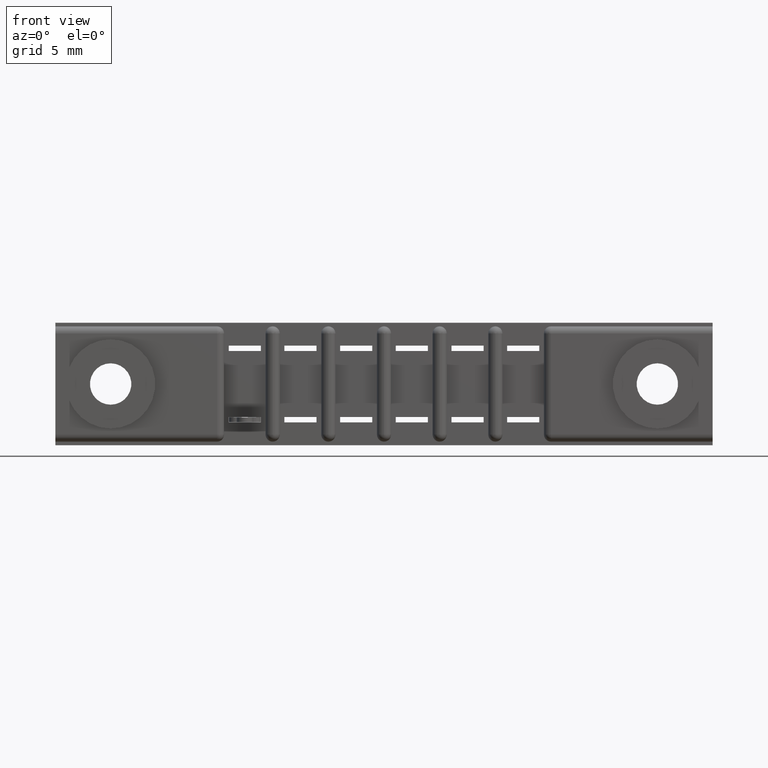
[diagram: clean part render]
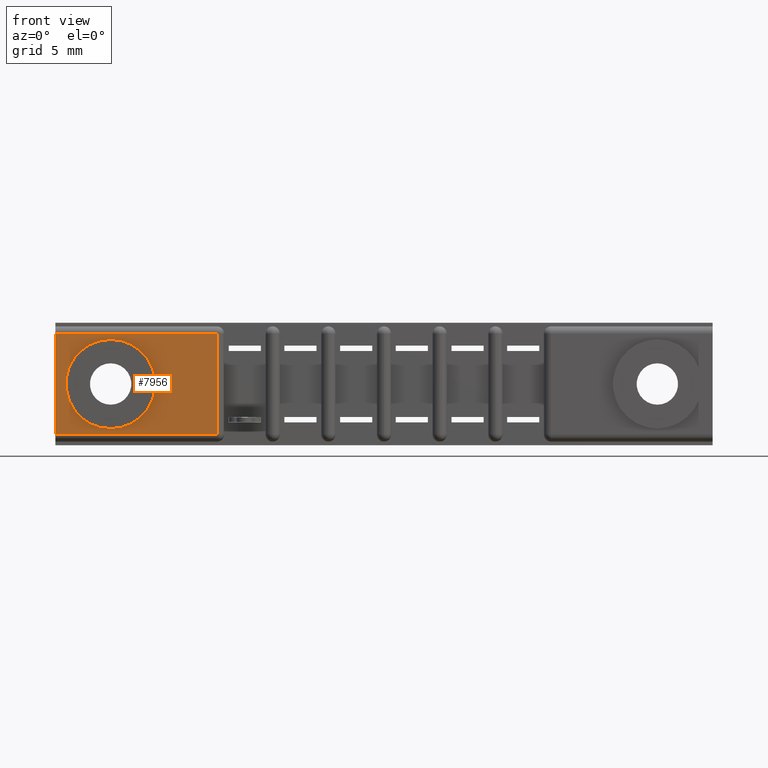
[diagram: same view with one face highlighted and labeled with its STEP entity id]
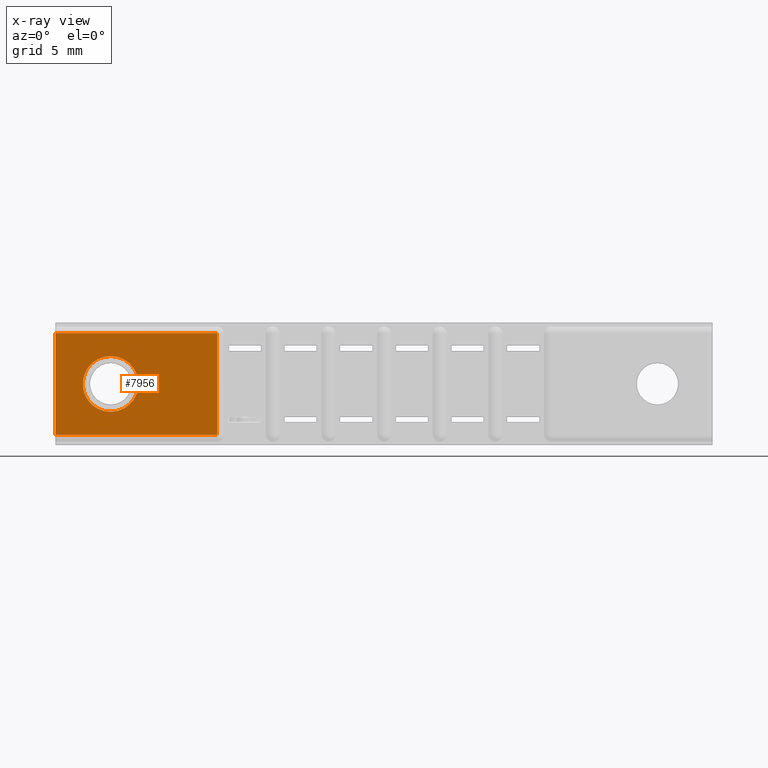
[diagram: x-ray of the same camera — body ghosted, the highlighted face saturated]
A machine part, front view. The second image highlights one B-rep face of the part: STEP entity #7956.
The next image is the same camera in x-ray: the body ghosted, the highlighted face saturated — about 0% of this face is hidden behind the body in this view.
In plain terms, the highlighted planar face has unit normal (0, -1, 0).
Its self-contained STEP definition (entity closure, byte-faithful):
#148 = CARTESIAN_POINT ( 'NONE',  ( 0.1550000000000003900, 0.0000000000000000000, -0.09350000000000013900 ) ) ;
#183 = AXIS2_PLACEMENT_3D ( 'NONE', #1814, #7601, #2672 ) ;
#408 = VECTOR ( 'NONE', #4841, 39.37007874015748100 ) ;
#730 = AXIS2_PLACEMENT_3D ( 'NONE', #3597, #9255, #4507 ) ;
#968 = VERTEX_POINT ( 'NONE', #2707 ) ;
#1083 = AXIS2_PLACEMENT_3D ( 'NONE', #5285, #1882, #7660 ) ;
#1187 = LINE ( 'NONE', #3916, #408 ) ;
#1196 = ORIENTED_EDGE ( 'NONE', *, *, #8878, .F. ) ;
#1232 = ORIENTED_EDGE ( 'NONE', *, *, #8419, .F. ) ;
#1315 = DIRECTION ( 'NONE',  ( -1.000000000000000000, -0.0000000000000000000, 0.0000000000000000000 ) ) ;
#1323 = ORIENTED_EDGE ( 'NONE', *, *, #9059, .T. ) ;
#1364 = ORIENTED_EDGE ( 'NONE', *, *, #9060, .T. ) ;
#1431 = ORIENTED_EDGE ( 'NONE', *, *, #9018, .F. ) ;
#1448 = ORIENTED_EDGE ( 'NONE', *, *, #9062, .T. ) ;
#1535 = VECTOR ( 'NONE', #3025, 39.37007874015748100 ) ;
#1814 = CARTESIAN_POINT ( 'NONE',  ( 0.1550000000000003900, 0.0000000000000000000, -0.1715000000000001200 ) ) ;
#1882 = DIRECTION ( 'NONE',  ( 0.0000000000000000000, -1.000000000000000000, 0.0000000000000000000 ) ) ;
#1961 = CARTESIAN_POINT ( 'NONE',  ( 0.4530000000000003500, 0.0000000000000000000, -0.3130000000000001100 ) ) ;
#2152 = FACE_OUTER_BOUND ( 'NONE', #3766, .T. ) ;
#2566 = VERTEX_POINT ( 'NONE', #1961 ) ;
#2672 = DIRECTION ( 'NONE',  ( 0.0000000000000000000, 0.0000000000000000000, -1.000000000000000000 ) ) ;
#2707 = CARTESIAN_POINT ( 'NONE',  ( 0.1550000000000003900, 0.0000000000000000000, -0.2495000000000001400 ) ) ;
#2777 = VECTOR ( 'NONE', #8805, 39.37007874015748100 ) ;
#3025 = DIRECTION ( 'NONE',  ( -0.0000000000000000000, -0.0000000000000000000, 1.000000000000000000 ) ) ;
#3089 = CARTESIAN_POINT ( 'NONE',  ( 1.224646799147369400E-018, 0.0000000000000000000, -0.03000000000000013400 ) ) ;
#3332 = VERTEX_POINT ( 'NONE', #5676 ) ;
#3542 = PLANE ( 'NONE',  #1083 ) ;
#3597 = CARTESIAN_POINT ( 'NONE',  ( 0.1550000000000003900, 0.0000000000000000000, -0.1715000000000001200 ) ) ;
#3750 = CARTESIAN_POINT ( 'NONE',  ( 0.0000000000000000000, 0.0000000000000000000, -0.3130000000000001100 ) ) ;
#3766 = EDGE_LOOP ( 'NONE', ( #1323, #1364, #1431, #1448 ) ) ;
#3916 = CARTESIAN_POINT ( 'NONE',  ( 0.4529999999999999000, 0.0000000000000000000, -0.03000000000000015800 ) ) ;
#3977 = CIRCLE ( 'NONE', #730, 0.07800000000000000000 ) ;
#4507 = DIRECTION ( 'NONE',  ( 0.0000000000000000000, 0.0000000000000000000, -1.000000000000000000 ) ) ;
#4841 = DIRECTION ( 'NONE',  ( -1.592914282019977500E-015, -0.0000000000000000000, 1.000000000000000000 ) ) ;
#5285 = CARTESIAN_POINT ( 'NONE',  ( 0.0000000000000000000, 0.0000000000000000000, -0.3430000000000000300 ) ) ;
#5523 = LINE ( 'NONE', #3089, #7168 ) ;
#5676 = CARTESIAN_POINT ( 'NONE',  ( 0.4529999999999999000, 0.0000000000000000000, -0.03000000000000014100 ) ) ;
#6065 = EDGE_LOOP ( 'NONE', ( #1196, #1232 ) ) ;
#6347 = VERTEX_POINT ( 'NONE', #8264 ) ;
#6939 = VERTEX_POINT ( 'NONE', #148 ) ;
#7168 = VECTOR ( 'NONE', #1315, 39.37007874015748100 ) ;
#7405 = CIRCLE ( 'NONE', #183, 0.07800000000000000000 ) ;
#7601 = DIRECTION ( 'NONE',  ( 0.0000000000000000000, -1.000000000000000000, 0.0000000000000000000 ) ) ;
#7660 = DIRECTION ( 'NONE',  ( 0.0000000000000000000, -0.0000000000000000000, -1.000000000000000000 ) ) ;
#7881 = CARTESIAN_POINT ( 'NONE',  ( 0.0000000000000000000, 0.0000000000000000000, 0.0000000000000000000 ) ) ;
#7956 = ADVANCED_FACE ( 'NONE', ( #8190, #2152 ), #3542, .T. ) ;
#8004 = CARTESIAN_POINT ( 'NONE',  ( 0.0000000000000000000, 0.0000000000000000000, -0.3130000000000001100 ) ) ;
#8190 = FACE_BOUND ( 'NONE', #6065, .T. ) ;
#8264 = CARTESIAN_POINT ( 'NONE',  ( 0.0000000000000000000, 0.0000000000000000000, -0.03000000000000013400 ) ) ;
#8419 = EDGE_CURVE ( 'NONE', #6939, #968, #3977, .T. ) ;
#8628 = VERTEX_POINT ( 'NONE', #3750 ) ;
#8805 = DIRECTION ( 'NONE',  ( 1.000000000000000000, 0.0000000000000000000, 0.0000000000000000000 ) ) ;
#8878 = EDGE_CURVE ( 'NONE', #968, #6939, #7405, .T. ) ;
#9018 = EDGE_CURVE ( 'NONE', #8628, #6347, #9996, .T. ) ;
#9059 = EDGE_CURVE ( 'NONE', #2566, #3332, #1187, .T. ) ;
#9060 = EDGE_CURVE ( 'NONE', #3332, #6347, #5523, .T. ) ;
#9062 = EDGE_CURVE ( 'NONE', #8628, #2566, #9244, .T. ) ;
#9244 = LINE ( 'NONE', #8004, #2777 ) ;
#9255 = DIRECTION ( 'NONE',  ( 0.0000000000000000000, -1.000000000000000000, 0.0000000000000000000 ) ) ;
#9996 = LINE ( 'NONE', #7881, #1535 ) ;